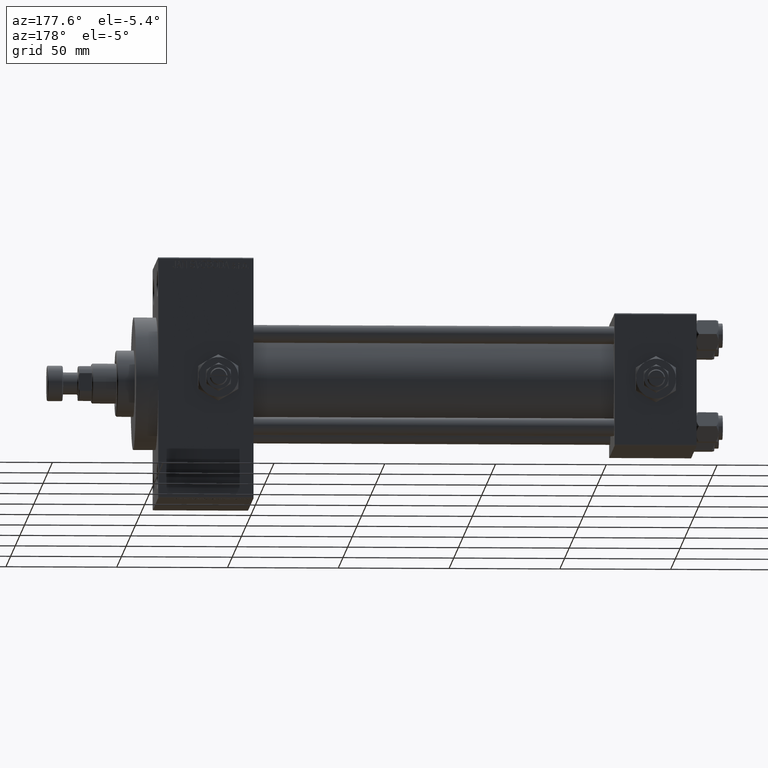
[diagram: clean part render]
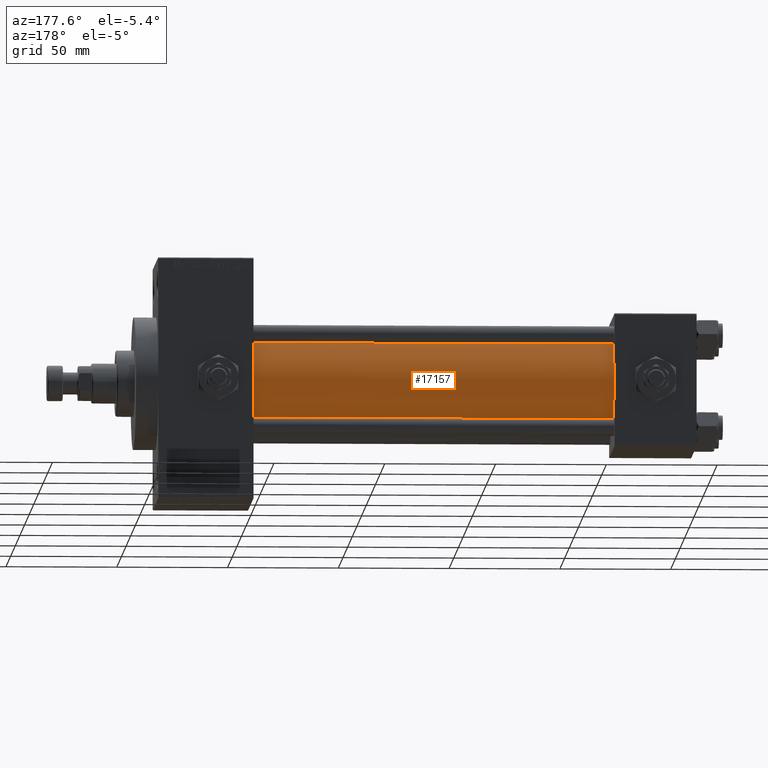
[diagram: same view with one face highlighted and labeled with its STEP entity id]
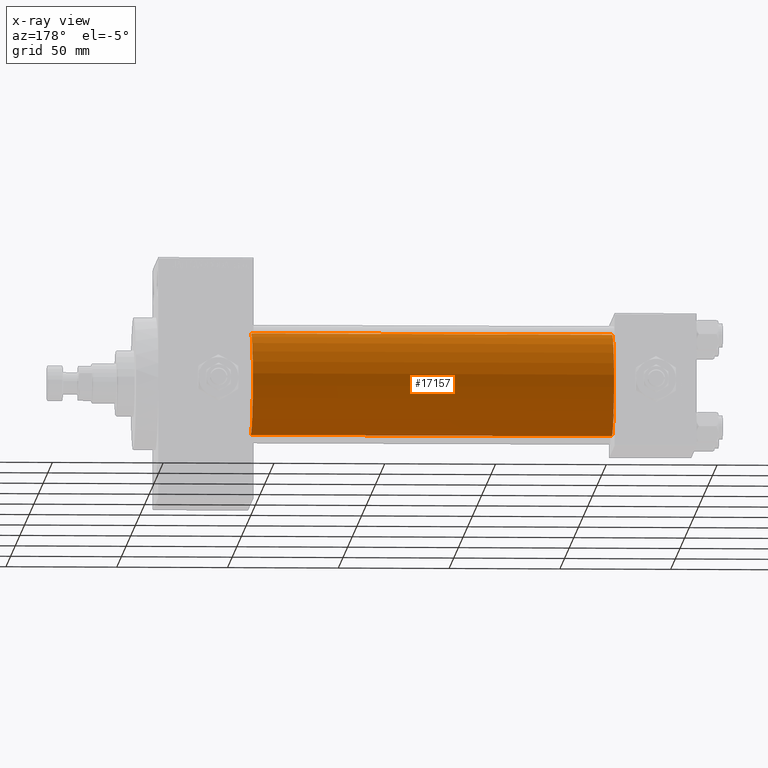
[diagram: x-ray of the same camera — body ghosted, the highlighted face saturated]
A machine part, auxiliary view. The second image highlights one B-rep face of the part: STEP entity #17157.
The next image is the same camera in x-ray: the body ghosted, the highlighted face saturated — about 0% of this face is hidden behind the body in this view.
In plain terms, the highlighted cylindrical surface (partial cylindrical patch) has radius 23 mm, axis along (-1, -0, -0).
Its self-contained STEP definition (entity closure, byte-faithful):
#1649 = VERTEX_POINT ( 'NONE', #15378 ) ;
#2139 = AXIS2_PLACEMENT_3D ( 'NONE', #18123, #6794, #45271 ) ;
#2492 = FACE_OUTER_BOUND ( 'NONE', #5612, .T. ) ;
#3274 = DIRECTION ( 'NONE',  ( -1.000000000000000000, -0.000000000000000000, -0.000000000000000000 ) ) ;
#3814 = VERTEX_POINT ( 'NONE', #19459 ) ;
#5048 = CIRCLE ( 'NONE', #29933, 23.00000000000000000 ) ;
#5612 = EDGE_LOOP ( 'NONE', ( #18670, #48968, #36966, #47196 ) ) ;
#6383 = VERTEX_POINT ( 'NONE', #15282 ) ;
#6794 = DIRECTION ( 'NONE',  ( 1.000000000000000000, 0.000000000000000000, 0.000000000000000000 ) ) ;
#7243 = DIRECTION ( 'NONE',  ( 0.000000000000000000, 0.000000000000000000, 1.000000000000000000 ) ) ;
#10779 = VECTOR ( 'NONE', #3274, 1000.000000000000000 ) ;
#11293 = CARTESIAN_POINT ( 'NONE',  ( 37.00000000000000711, 2.146024240737016609E-16, -23.00000000000000000 ) ) ;
#12202 = EDGE_CURVE ( 'NONE', #48842, #3814, #5048, .T. ) ;
#15282 = CARTESIAN_POINT ( 'NONE',  ( 200.0000000000000000, 2.146024240737016609E-16, -23.00000000000000000 ) ) ;
#15378 = CARTESIAN_POINT ( 'NONE',  ( 200.0000000000000000, -2.602085213965210642E-15, 23.00000000000000000 ) ) ;
#17157 = ADVANCED_FACE ( 'NONE', ( #2492 ), #22344, .T. ) ;
#17746 = CARTESIAN_POINT ( 'NONE',  ( 37.00000000000000711, -2.602085213965210642E-15, 0.000000000000000000 ) ) ;
#18123 = CARTESIAN_POINT ( 'NONE',  ( 200.0000000000000000, -2.602085213965210642E-15, 0.000000000000000000 ) ) ;
#18670 = ORIENTED_EDGE ( 'NONE', *, *, #28135, .F. ) ;
#19459 = CARTESIAN_POINT ( 'NONE',  ( 37.00000000000000711, -2.602085213965210642E-15, 23.00000000000000000 ) ) ;
#19853 = EDGE_CURVE ( 'NONE', #1649, #3814, #43248, .T. ) ;
#22344 = CYLINDRICAL_SURFACE ( 'NONE', #49286, 23.00000000000000000 ) ;
#23817 = CIRCLE ( 'NONE', #2139, 23.00000000000000000 ) ;
#25367 = DIRECTION ( 'NONE',  ( -1.000000000000000000, -0.000000000000000000, -0.000000000000000000 ) ) ;
#28135 = EDGE_CURVE ( 'NONE', #6383, #1649, #23817, .T. ) ;
#29933 = AXIS2_PLACEMENT_3D ( 'NONE', #17746, #44145, #36110 ) ;
#31688 = CARTESIAN_POINT ( 'NONE',  ( 200.0000000000000000, -2.602085213965210642E-15, 23.00000000000000000 ) ) ;
#36110 = DIRECTION ( 'NONE',  ( 0.000000000000000000, 0.000000000000000000, 1.000000000000000000 ) ) ;
#36966 = ORIENTED_EDGE ( 'NONE', *, *, #12202, .T. ) ;
#37352 = VECTOR ( 'NONE', #46526, 1000.000000000000000 ) ;
#40082 = EDGE_CURVE ( 'NONE', #6383, #48842, #42485, .T. ) ;
#40701 = CARTESIAN_POINT ( 'NONE',  ( 200.0000000000000000, -2.602085213965210642E-15, 0.000000000000000000 ) ) ;
#41499 = CARTESIAN_POINT ( 'NONE',  ( 200.0000000000000000, 2.146024240737016609E-16, -23.00000000000000000 ) ) ;
#42485 = LINE ( 'NONE', #41499, #10779 ) ;
#43248 = LINE ( 'NONE', #31688, #37352 ) ;
#44145 = DIRECTION ( 'NONE',  ( 1.000000000000000000, -0.000000000000000000, 0.000000000000000000 ) ) ;
#45271 = DIRECTION ( 'NONE',  ( 0.000000000000000000, 0.000000000000000000, -1.000000000000000000 ) ) ;
#46526 = DIRECTION ( 'NONE',  ( -1.000000000000000000, -0.000000000000000000, -0.000000000000000000 ) ) ;
#47196 = ORIENTED_EDGE ( 'NONE', *, *, #19853, .F. ) ;
#48842 = VERTEX_POINT ( 'NONE', #11293 ) ;
#48968 = ORIENTED_EDGE ( 'NONE', *, *, #40082, .T. ) ;
#49286 = AXIS2_PLACEMENT_3D ( 'NONE', #40701, #25367, #7243 ) ;